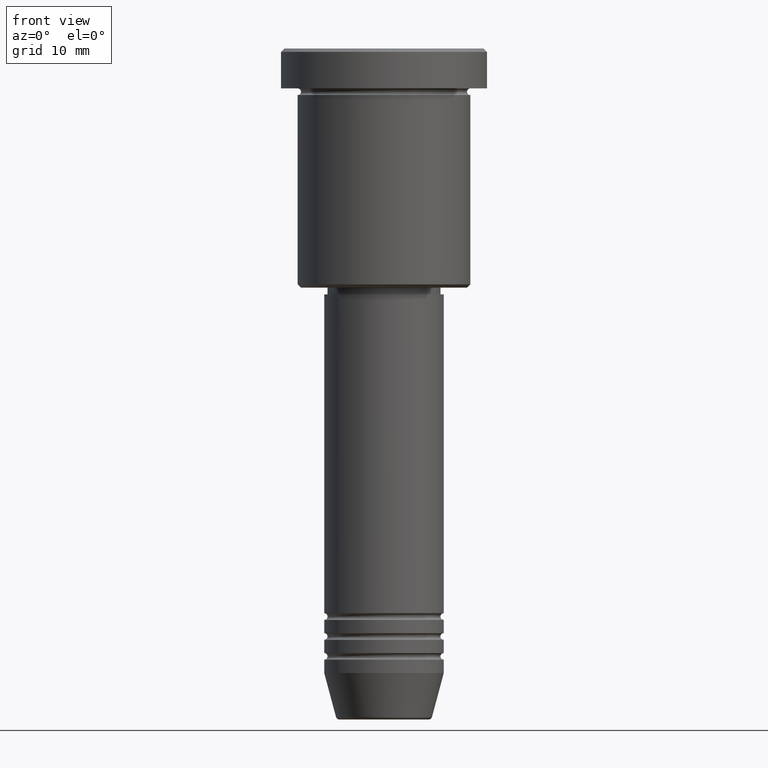
[diagram: clean part render]
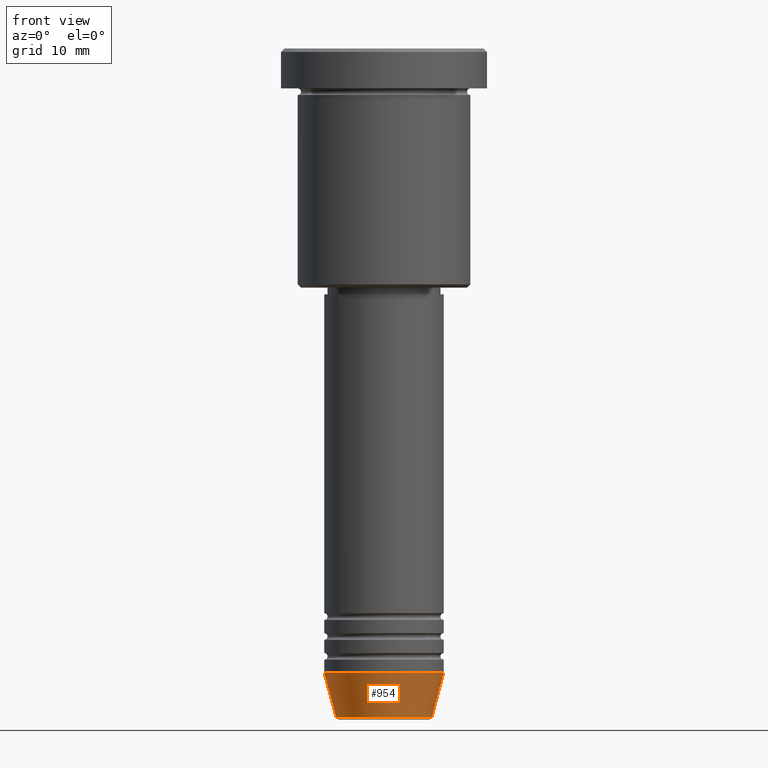
[diagram: same view with one face highlighted and labeled with its STEP entity id]
A machine part, front view. The second image highlights one B-rep face of the part: STEP entity #954.
In plain terms, the highlighted conical surface has half-angle 15 deg.
Its self-contained STEP definition (entity closure, byte-faithful):
#42 = CARTESIAN_POINT ( 'NONE',  ( 7.223655072137188604, 0.000000000000000000, -100.6294095225512706 ) ) ;
#49 = CARTESIAN_POINT ( 'NONE',  ( -7.223655072137189492, 9.934123627281765110E-16, -100.6294095225512706 ) ) ;
#59 = ORIENTED_EDGE ( 'NONE', *, *, #311, .T. ) ;
#60 = ORIENTED_EDGE ( 'NONE', *, *, #170, .F. ) ;
#69 = CIRCLE ( 'NONE', #139, 9.000000000000000000 ) ;
#131 = DIRECTION ( 'NONE',  ( 1.000000000000000000, 0.000000000000000000, 0.000000000000000000 ) ) ;
#139 = AXIS2_PLACEMENT_3D ( 'NONE', #500, #319, #315 ) ;
#146 = CARTESIAN_POINT ( 'NONE',  ( -9.000000000000000000, 1.102182119232617714E-15, -94.00000000000000000 ) ) ;
#170 = EDGE_CURVE ( 'NONE', #278, #1090, #69, .T. ) ;
#205 = CARTESIAN_POINT ( 'NONE',  ( -9.000000000000000000, 1.102182119232617714E-15, -94.00000000000000000 ) ) ;
#227 = ORIENTED_EDGE ( 'NONE', *, *, #410, .F. ) ;
#241 = ORIENTED_EDGE ( 'NONE', *, *, #737, .T. ) ;
#278 = VERTEX_POINT ( 'NONE', #205 ) ;
#298 = CARTESIAN_POINT ( 'NONE',  ( 9.000000000000000000, 0.000000000000000000, -94.00000000000000000 ) ) ;
#311 = EDGE_CURVE ( 'NONE', #317, #725, #631, .T. ) ;
#315 = DIRECTION ( 'NONE',  ( 1.000000000000000000, 0.000000000000000000, 0.000000000000000000 ) ) ;
#317 = VERTEX_POINT ( 'NONE', #49 ) ;
#318 = DIRECTION ( 'NONE',  ( -0.000000000000000000, -0.000000000000000000, 1.000000000000000000 ) ) ;
#319 = DIRECTION ( 'NONE',  ( -0.000000000000000000, -0.000000000000000000, 1.000000000000000000 ) ) ;
#337 = DIRECTION ( 'NONE',  ( -0.000000000000000000, -0.000000000000000000, 1.000000000000000000 ) ) ;
#343 = VECTOR ( 'NONE', #611, 1000.000000000000000 ) ;
#361 = AXIS2_PLACEMENT_3D ( 'NONE', #972, #318, #131 ) ;
#410 = EDGE_CURVE ( 'NONE', #317, #278, #628, .T. ) ;
#500 = CARTESIAN_POINT ( 'NONE',  ( 0.000000000000000000, 0.000000000000000000, -94.00000000000000000 ) ) ;
#610 = FACE_OUTER_BOUND ( 'NONE', #724, .T. ) ;
#611 = DIRECTION ( 'NONE',  ( -0.2588190451025213501, 3.169619151431772337E-17, 0.9659258262890680902 ) ) ;
#618 = DIRECTION ( 'NONE',  ( 1.000000000000000000, 0.000000000000000000, 0.000000000000000000 ) ) ;
#628 = LINE ( 'NONE', #146, #343 ) ;
#631 = CIRCLE ( 'NONE', #361, 7.223655072137188604 ) ;
#645 = CARTESIAN_POINT ( 'NONE',  ( 9.000000000000000000, 0.000000000000000000, -94.00000000000000000 ) ) ;
#724 = EDGE_LOOP ( 'NONE', ( #227, #59, #241, #60 ) ) ;
#725 = VERTEX_POINT ( 'NONE', #42 ) ;
#737 = EDGE_CURVE ( 'NONE', #725, #1090, #845, .T. ) ;
#811 = CONICAL_SURFACE ( 'NONE', #1152, 9.000000000000000000, 0.2617993877991500740 ) ;
#829 = VECTOR ( 'NONE', #1047, 1000.000000000000000 ) ;
#845 = LINE ( 'NONE', #298, #829 ) ;
#954 = ADVANCED_FACE ( 'NONE', ( #610 ), #811, .T. ) ;
#972 = CARTESIAN_POINT ( 'NONE',  ( 0.000000000000000000, 0.000000000000000000, -100.6294095225512706 ) ) ;
#981 = CARTESIAN_POINT ( 'NONE',  ( 0.000000000000000000, 0.000000000000000000, -94.00000000000000000 ) ) ;
#1047 = DIRECTION ( 'NONE',  ( 0.2588190451025213501, 0.000000000000000000, 0.9659258262890680902 ) ) ;
#1090 = VERTEX_POINT ( 'NONE', #645 ) ;
#1152 = AXIS2_PLACEMENT_3D ( 'NONE', #981, #337, #618 ) ;